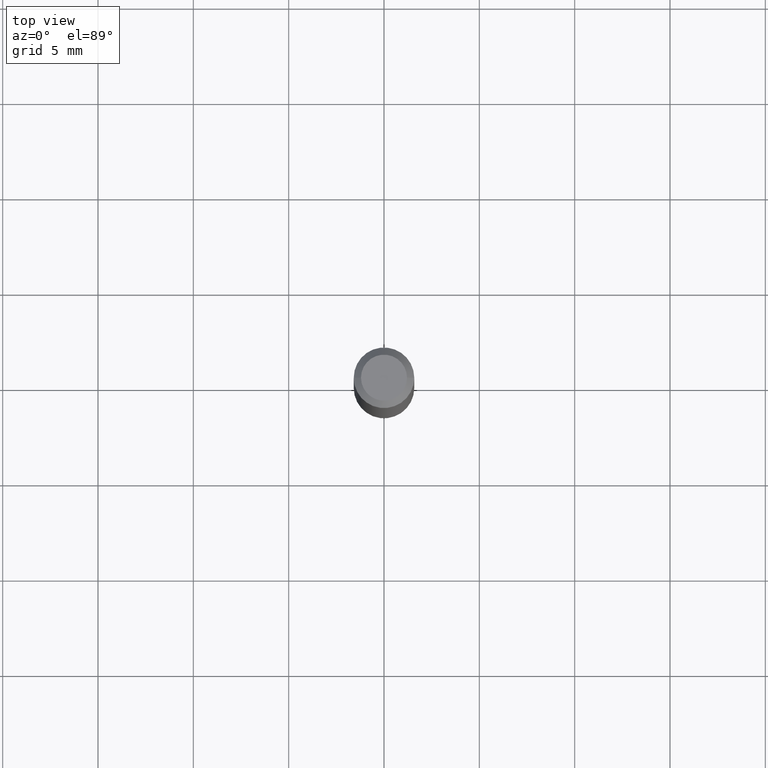
[diagram: clean part render]
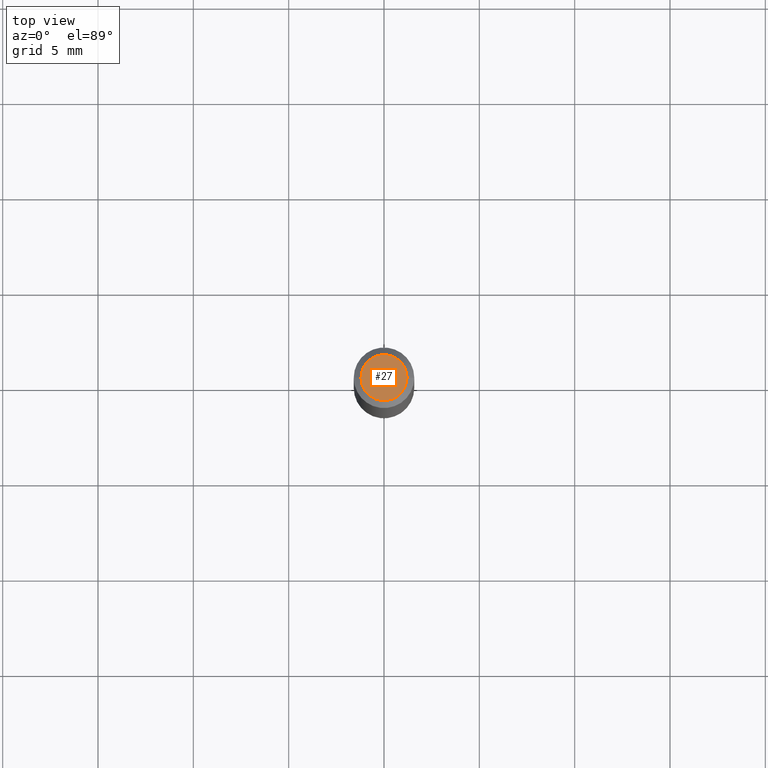
[diagram: same view with one face highlighted and labeled with its STEP entity id]
A machine part, top view. The second image highlights one B-rep face of the part: STEP entity #27.
In plain terms, the highlighted planar face has unit normal (0, -0, -1).
Its self-contained STEP definition (entity closure, byte-faithful):
#12 = ORIENTED_EDGE ( 'NONE', *, *, #100, .T. ) ;
#17 = DIRECTION ( 'NONE',  ( -2.445468806185136597E-29, 3.491481338843145583E-15, 1.000000000000000000 ) ) ;
#27 = ADVANCED_FACE ( 'NONE', ( #376 ), #277, .F. ) ;
#28 = ORIENTED_EDGE ( 'NONE', *, *, #389, .T. ) ;
#47 = DIRECTION ( 'NONE',  ( -2.445468806185136597E-29, 3.491481338843145583E-15, 1.000000000000000000 ) ) ;
#61 = DIRECTION ( 'NONE',  ( 1.000000000000000000, -6.982962677686267499E-15, 4.852736867747366768E-29 ) ) ;
#100 = EDGE_CURVE ( 'NONE', #259, #351, #424, .T. ) ;
#104 = AXIS2_PLACEMENT_3D ( 'NONE', #404, #47, #338 ) ;
#158 = DIRECTION ( 'NONE',  ( 2.438088387897960049E-29, -3.491481338843145188E-15, -1.000000000000000000 ) ) ;
#194 = CARTESIAN_POINT ( 'NONE',  ( 3.316907271900976096E-16, 0.04749999999999999362, -4.273281759770383169E-16 ) ) ;
#211 = EDGE_LOOP ( 'NONE', ( #12, #28 ) ) ;
#213 = AXIS2_PLACEMENT_3D ( 'NONE', #339, #17, #61 ) ;
#254 = CARTESIAN_POINT ( 'NONE',  ( 0.04749999999999999362, -4.035134999187587991E-16, -5.229656247639753758E-16 ) ) ;
#259 = VERTEX_POINT ( 'NONE', #299 ) ;
#277 = PLANE ( 'NONE',  #462 ) ;
#297 = CIRCLE ( 'NONE', #104, 0.04749999999999999362 ) ;
#299 = CARTESIAN_POINT ( 'NONE',  ( -0.04749999999999999362, 3.578768372314202124E-16, -5.229656247639803061E-16 ) ) ;
#301 = DIRECTION ( 'NONE',  ( -1.000000000000000000, 6.982962677686265922E-15, -4.876176775795935793E-29 ) ) ;
#338 = DIRECTION ( 'NONE',  ( 1.000000000000000000, -6.982962677686267499E-15, 4.852736867747366768E-29 ) ) ;
#339 = CARTESIAN_POINT ( 'NONE',  ( 1.278896122067429216E-44, -1.825924719719875646E-30, -5.229656247639779395E-16 ) ) ;
#351 = VERTEX_POINT ( 'NONE', #254 ) ;
#376 = FACE_OUTER_BOUND ( 'NONE', #211, .T. ) ;
#389 = EDGE_CURVE ( 'NONE', #351, #259, #297, .T. ) ;
#404 = CARTESIAN_POINT ( 'NONE',  ( 1.278896122067429216E-44, -1.825924719719875646E-30, -5.229656247639779395E-16 ) ) ;
#424 = CIRCLE ( 'NONE', #213, 0.04749999999999999362 ) ;
#462 = AXIS2_PLACEMENT_3D ( 'NONE', #194, #158, #301 ) ;